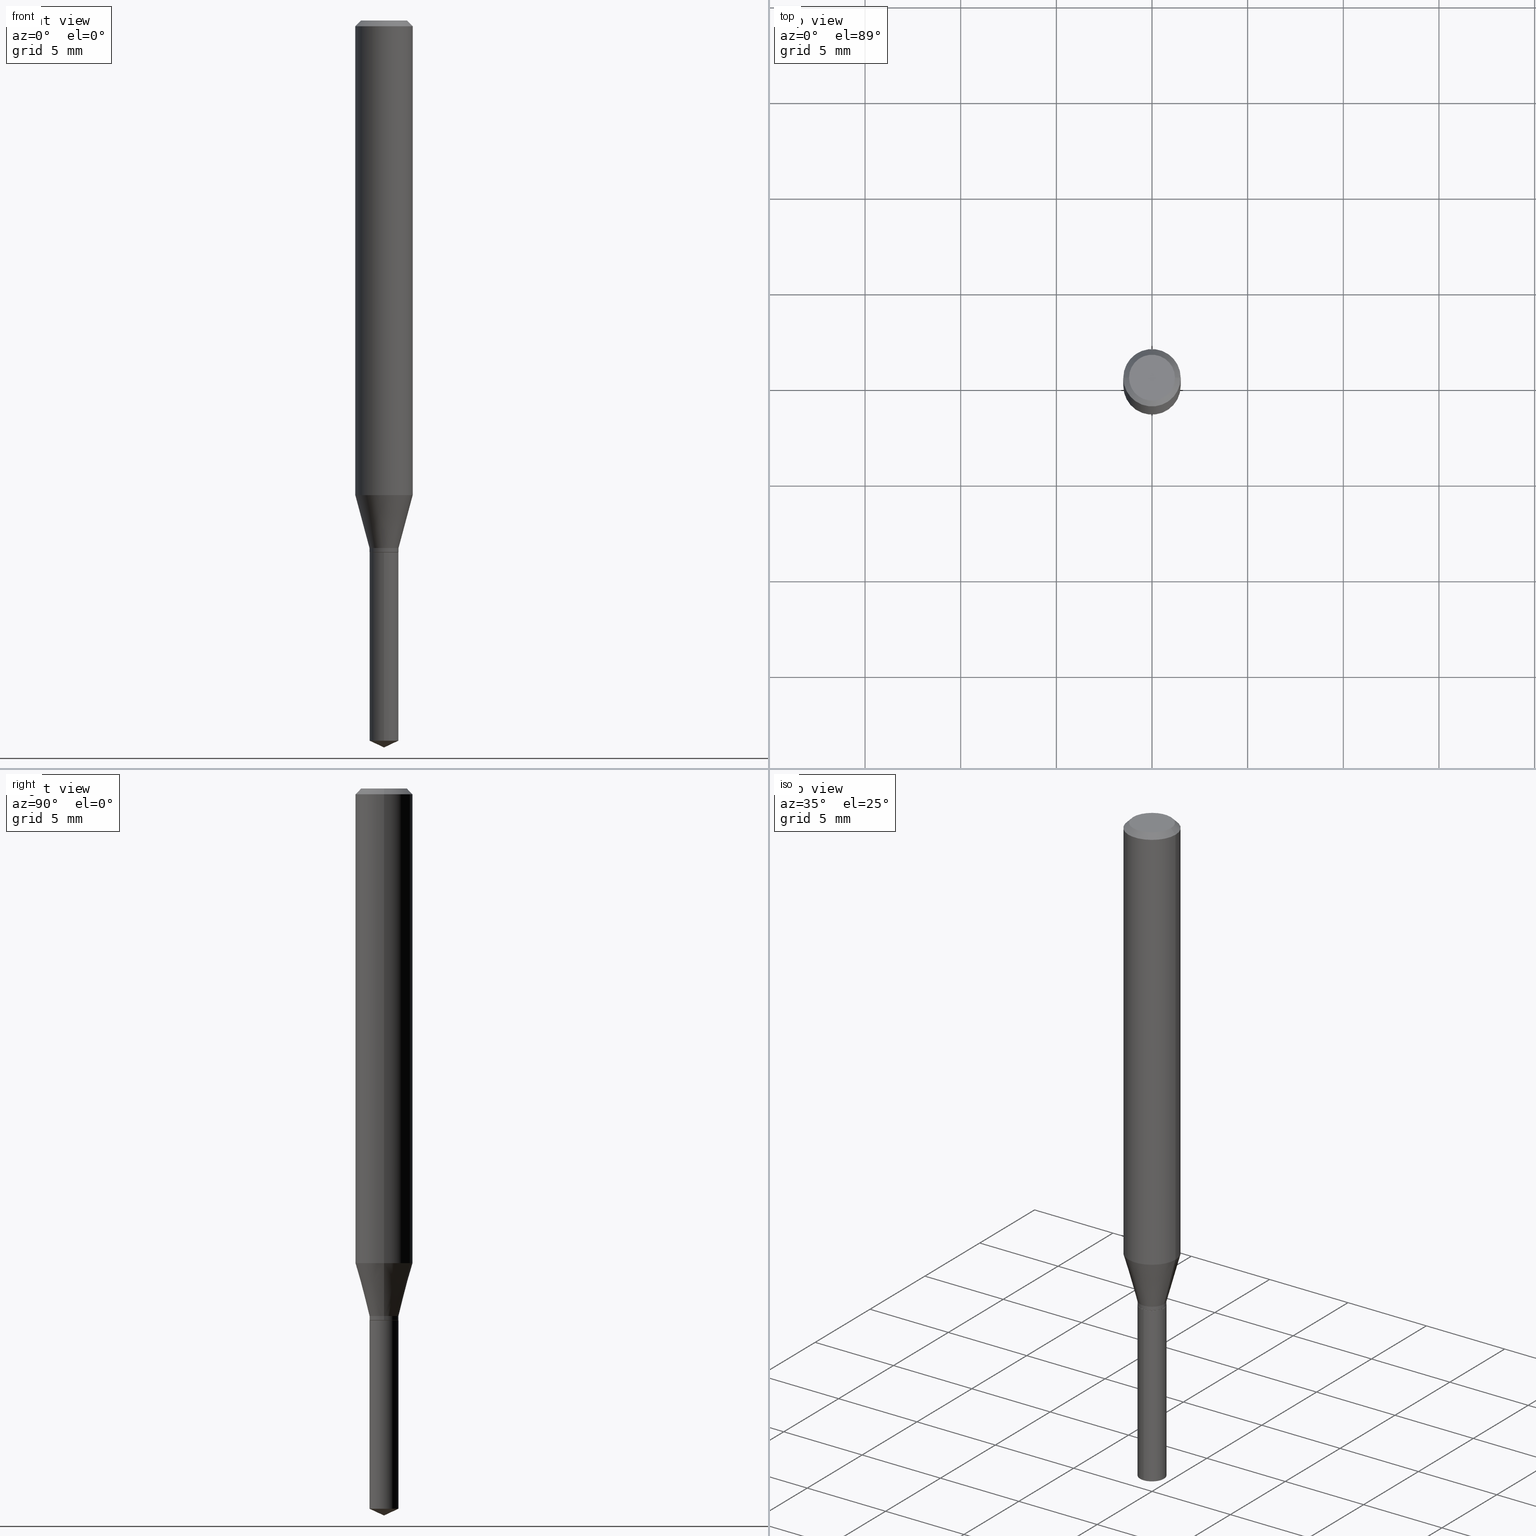
[diagram: canonical four-view strip — front | top / right | iso, engineering-drawing reading convention]
A machine part, canonical four-view strip (front | top / right | iso — engineering-drawing reading convention). The complete STEP part file that produces these views, byte-faithful:
ISO-10303-21;
HEADER;
FILE_DESCRIPTION (( 'STEP AP203' ),
    '1' );
FILE_NAME ('07543.STEP',
    '2024-04-23T22:43:20',
    ( '' ),
    ( '' ),
    'SwSTEP 2.0',
    'SolidWorks 2023',
    '' );
FILE_SCHEMA (( 'CONFIG_CONTROL_DESIGN' ));
ENDSEC;

DATA;
#1 = CC_DESIGN_PERSON_AND_ORGANIZATION_ASSIGNMENT ( #312, #278, ( #298 ) ) ;
#2 = DIRECTION ( 'NONE',  ( 2.445468806185136597E-29, -3.491481338843145583E-15, -1.000000000000000000 ) ) ;
#3 = CARTESIAN_POINT ( 'NONE',  ( 2.124522779923061410E-16, 0.02989999999999482308, -1.482157401021165555 ) ) ;
#4 = DIRECTION ( 'NONE',  ( -6.982962677686266711E-15, -1.000000000000000000, 4.568307681712814929E-15 ) ) ;
#5 = EDGE_CURVE ( 'NONE', #290, #109, #152, .T. ) ;
#6 = DIRECTION ( 'NONE',  ( 1.000000000000000000, -6.982962677686261977E-15, 0.000000000000000000 ) ) ;
#7 = ORIENTED_EDGE ( 'NONE', *, *, #103, .F. ) ;
#8 = AXIS2_PLACEMENT_3D ( 'NONE', #33, #195, #338 ) ;
#9 = DIRECTION ( 'NONE',  ( -2.445468806185136597E-29, 3.491481338843145583E-15, 1.000000000000000000 ) ) ;
#10 = CONICAL_SURFACE ( 'NONE', #125, 0.02939999999999999905, 0.7853981633972818566 ) ;
#11 = APPROVAL ( #244, 'UNSPECIFIED' ) ;
#12 = CARTESIAN_POINT ( 'NONE',  ( -0.04724000000000000421, 3.504923541997677355E-16, -3.380025165670481712E-19 ) ) ;
#13 = ORIENTED_EDGE ( 'NONE', *, *, #365, .T. ) ;
#14 = DIRECTION ( 'NONE',  ( 1.000000000000000000, -6.982962677686260400E-15, 0.000000000000000000 ) ) ;
#15 = EDGE_CURVE ( 'NONE', #370, #142, #88, .T. ) ;
#16 = CIRCLE ( 'NONE', #231, 0.05904999999999999832 ) ;
#17 = AXIS2_PLACEMENT_3D ( 'NONE', #485, #220, #440 ) ;
#18 = ORIENTED_EDGE ( 'NONE', *, *, #292, .T. ) ;
#19 = FACE_OUTER_BOUND ( 'NONE', #222, .T. ) ;
#20 = ORIENTED_EDGE ( 'NONE', *, *, #435, .T. ) ;
#21 = EDGE_CURVE ( 'NONE', #461, #173, #294, .T. ) ;
#22 = EDGE_LOOP ( 'NONE', ( #356, #309, #237, #404 ) ) ;
#23 = FACE_OUTER_BOUND ( 'NONE', #434, .T. ) ;
#24 = CC_DESIGN_APPROVAL ( #11, ( #90 ) ) ;
#25 = CARTESIAN_POINT ( 'NONE',  ( -9.261968845786000133E-28, 1.322362114038720264E-13, 37.87397874015748300 ) ) ;
#26 = CALENDAR_DATE ( 2024, 23, 4 ) ;
#27 = EDGE_CURVE ( 'NONE', #142, #432, #264, .T. ) ;
#28 = ORIENTED_EDGE ( 'NONE', *, *, #358, .T. ) ;
#29 = AXIS2_PLACEMENT_3D ( 'NONE', #230, #186, #416 ) ;
#30 = AXIS2_PLACEMENT_3D ( 'NONE', #266, #452, #316 ) ;
#31 = CC_DESIGN_APPROVAL ( #53, ( #136 ) ) ;
#32 = ORIENTED_EDGE ( 'NONE', *, *, #78, .F. ) ;
#33 = CARTESIAN_POINT ( 'NONE',  ( 2.675342873966538993E-29, -3.819680584694400481E-15, -1.093999999999999861 ) ) ;
#34 = CYLINDRICAL_SURFACE ( 'NONE', #17, 0.02989999999999999949 ) ;
#35 = ORIENTED_EDGE ( 'NONE', *, *, #292, .F. ) ;
#36 = CIRCLE ( 'NONE', #181, 0.04724000000000000421 ) ;
#37 = APPROVAL_PERSON_ORGANIZATION ( #456, #232, #210 ) ;
#38 = ORIENTED_EDGE ( 'NONE', *, *, #218, .T. ) ;
#39 = DIRECTION ( 'NONE',  ( -2.445468806185136597E-29, 3.491481338843145583E-15, 1.000000000000000000 ) ) ;
#40 = LINE ( 'NONE', #197, #305 ) ;
#41 = DIRECTION ( 'NONE',  ( 1.000000000000000000, -6.982962677686266711E-15, 4.876185090822587894E-29 ) ) ;
#42 = CC_DESIGN_PERSON_AND_ORGANIZATION_ASSIGNMENT ( #169, #314, ( #90 ) ) ;
#43 = DIRECTION ( 'NONE',  ( -0.7071067811864297781, 7.493145998869928175E-15, 0.7071067811866651454 ) ) ;
#44 = ORIENTED_EDGE ( 'NONE', *, *, #175, .T. ) ;
#45 = VECTOR ( 'NONE', #190, 39.37007874015748854 ) ;
#46 = CARTESIAN_POINT ( 'NONE',  ( 0.02989999999999999949, -2.087905840628193703E-16, 1.457976855962984862E-30 ) ) ;
#47 = VECTOR ( 'NONE', #121, 39.37007874015748143 ) ;
#48 = ORIENTED_EDGE ( 'NONE', *, *, #261, .T. ) ;
#49 = CARTESIAN_POINT ( 'NONE',  ( 3.658668015054778287E-29, -5.223602213574301462E-15, -1.496099999999999985 ) ) ;
#50 = ADVANCED_FACE ( 'NONE', ( #189 ), #68, .F. ) ;
#51 = DATE_AND_TIME ( #398, #357 ) ;
#52 = DIRECTION ( 'NONE',  ( -0.7071067811865453523, 2.468850131082234184E-15, -0.7071067811865496822 ) ) ;
#53 = APPROVAL ( #112, 'UNSPECIFIED' ) ;
#54 = ORIENTED_EDGE ( 'NONE', *, *, #194, .T. ) ;
#55 = DIRECTION ( 'NONE',  ( -6.982962677686266711E-15, -1.000000000000000000, 0.000000000000000000 ) ) ;
#56 = CIRCLE ( 'NONE', #30, 0.05905000000000011628 ) ;
#57 = PERSON ( 'UNSPECIFIED', 'UNSPECIFIED', 'UNSPECIFIED', ('UNSPECIFIED'), ('UNSPECIFIED'), ('UNSPECIFIED') ) ;
#58 = ORIENTED_EDGE ( 'NONE', *, *, #133, .F. ) ;
#59 = FACE_OUTER_BOUND ( 'NONE', #423, .T. ) ;
#60 = VERTEX_POINT ( 'NONE', #223 ) ;
#61 = DIRECTION ( 'NONE',  ( -2.445470214571802116E-29, 3.491479321953280158E-15, 1.000000000000000000 ) ) ;
#62 = AXIS2_PLACEMENT_3D ( 'NONE', #480, #329, #438 ) ;
#63 = CIRCLE ( 'NONE', #219, 0.05904999999999999832 ) ;
#64 = DIRECTION ( 'NONE',  ( -6.982962677686266711E-15, -1.000000000000000000, 4.568307681712814929E-15 ) ) ;
#65 = DIRECTION ( 'NONE',  ( -2.445468806185136597E-29, 3.491481338843145583E-15, 1.000000000000000000 ) ) ;
#66 = ADVANCED_FACE ( 'NONE', ( #113 ), #117, .T. ) ;
#67 = VERTEX_POINT ( 'NONE', #259 ) ;
#68 = PLANE ( 'NONE',  #29 ) ;
#69 = AXIS2_PLACEMENT_3D ( 'NONE', #84, #209, #14 ) ;
#70 = CONICAL_SURFACE ( 'NONE', #394, 84.42940631927474726, 1.134464013796317783 ) ;
#71 = DIRECTION ( 'NONE',  ( -2.445470214571802116E-29, 3.491479321953280158E-15, 1.000000000000000000 ) ) ;
#72 = EDGE_CURVE ( 'NONE', #67, #204, #106, .T. ) ;
#73 = ORIENTED_EDGE ( 'NONE', *, *, #185, .F. ) ;
#74 = PERSON_AND_ORGANIZATION ( #57, #187 ) ;
#75 = CARTESIAN_POINT ( 'NONE',  ( 2.888098660104664204E-31, -4.123439461173780263E-17, -0.01181000000000007218 ) ) ;
#76 = LINE ( 'NONE', #269, #470 ) ;
#77 = ORIENTED_EDGE ( 'NONE', *, *, #365, .F. ) ;
#78 = EDGE_CURVE ( 'NONE', #432, #472, #191, .T. ) ;
#79 = VECTOR ( 'NONE', #424, 39.37007874015748143 ) ;
#80 = AXIS2_PLACEMENT_3D ( 'NONE', #449, #196, #6 ) ;
#81 = DIRECTION ( 'NONE',  ( 1.000000000000000000, -6.982962677686266711E-15, 0.000000000000000000 ) ) ;
#82 = CARTESIAN_POINT ( 'NONE',  ( -0.05905000000000011628, -2.990591763228361215E-15, -0.9767107189593668970 ) ) ;
#83 = EDGE_LOOP ( 'NONE', ( #167, #489, #35 ) ) ;
#84 = CARTESIAN_POINT ( 'NONE',  ( 2.675342873966538993E-29, -3.819680584694400481E-15, -1.093999999999999861 ) ) ;
#85 = CYLINDRICAL_SURFACE ( 'NONE', #373, 0.05905000000000006077 ) ;
#86 = DIRECTION ( 'NONE',  ( -1.000000000000000000, 6.982962677686266711E-15, 0.000000000000000000 ) ) ;
#87 = CARTESIAN_POINT ( 'NONE',  ( 2.888098660104664204E-31, -4.123439461173780263E-17, -0.01181000000000007218 ) ) ;
#88 = CIRCLE ( 'NONE', #436, 0.02939999999999999905 ) ;
#89 = CARTESIAN_POINT ( 'NONE',  ( -0.05904999999999999832, -1.306125336186879331E-15, -0.01181000000000007218 ) ) ;
#90 = PRODUCT_DEFINITION_FORMATION_WITH_SPECIFIED_SOURCE ( 'ANY', '', #443, .NOT_KNOWN. ) ;
#91 = ADVANCED_FACE ( 'NONE', ( #410 ), #202, .T. ) ;
#92 = ORIENTED_EDGE ( 'NONE', *, *, #141, .F. ) ;
#93 = CARTESIAN_POINT ( 'NONE',  ( -2.087905840627830827E-16, -0.02990000000000516897, -1.482157401021165555 ) ) ;
#94 = ORIENTED_EDGE ( 'NONE', *, *, #474, .T. ) ;
#95 = ADVANCED_FACE ( 'NONE', ( #262 ), #250, .T. ) ;
#96 = ORIENTED_EDGE ( 'NONE', *, *, #27, .T. ) ;
#97 = CLOSED_SHELL ( 'NONE', ( #247, #392, #471, #322, #326 ) ) ;
#98 = CONICAL_SURFACE ( 'NONE', #80, 0.02989999999999999949, 0.2617993877991497964 ) ;
#99 = APPROVAL_PERSON_ORGANIZATION ( #383, #11, #203 ) ;
#100 = EDGE_LOOP ( 'NONE', ( #28, #156 ) ) ;
#101 = DIRECTION ( 'NONE',  ( 1.000000000000000000, -6.982962677686266711E-15, 4.876176775795935793E-29 ) ) ;
#102 = DIRECTION ( 'NONE',  ( 1.000000000000000000, -6.982962677686260400E-15, 0.000000000000000000 ) ) ;
#103 = EDGE_CURVE ( 'NONE', #290, #461, #458, .T. ) ;
#104 = AXIS2_PLACEMENT_3D ( 'NONE', #75, #2, #384 ) ;
#105 = CIRCLE ( 'NONE', #260, 0.02989999999999999949 ) ;
#106 = LINE ( 'NONE', #226, #327 ) ;
#107 = LINE ( 'NONE', #459, #289 ) ;
#108 = DIRECTION ( 'NONE',  ( -2.445470214571802116E-29, 3.491479321953280158E-15, 1.000000000000000000 ) ) ;
#109 = VERTEX_POINT ( 'NONE', #93 ) ;
#110 = CARTESIAN_POINT ( 'NONE',  ( -0.02939999999999999905, -3.609877533876242248E-15, -1.094500000000000028 ) ) ;
#111 = EDGE_CURVE ( 'NONE', #293, #446, #123, .T. ) ;
#112 = APPROVAL_STATUS ( 'not_yet_approved' ) ;
#113 = FACE_OUTER_BOUND ( 'NONE', #216, .T. ) ;
#114 = AXIS2_PLACEMENT_3D ( 'NONE', #369, #372, #221 ) ;
#115 = APPROVAL_DATE_TIME ( #376, #53 ) ;
#116 = CC_DESIGN_DATE_AND_TIME_ASSIGNMENT ( #166, #390, ( #136 ) ) ;
#117 = CYLINDRICAL_SURFACE ( 'NONE', #62, 0.02989999999999999949 ) ;
#118 = CARTESIAN_POINT ( 'NONE',  ( 0.000000000000000000, 0.000000000000000000, 0.000000000000000000 ) ) ;
#119 = ORIENTED_EDGE ( 'NONE', *, *, #254, .T. ) ;
#120 = APPROVAL_DATE_TIME ( #51, #232 ) ;
#121 = DIRECTION ( 'NONE',  ( -2.445468806185136877E-29, 3.491481338843145188E-15, 1.000000000000000000 ) ) ;
#122 = FACE_OUTER_BOUND ( 'NONE', #160, .T. ) ;
#123 = CIRCLE ( 'NONE', #288, 0.05905000000000011628 ) ;
#124 = ORIENTED_EDGE ( 'NONE', *, *, #27, .F. ) ;
#125 = AXIS2_PLACEMENT_3D ( 'NONE', #462, #65, #102 ) ;
#126 = CARTESIAN_POINT ( 'NONE',  ( 2.388515595881789392E-29, -3.410167248694701497E-15, -0.9767107189593668970 ) ) ;
#127 = DIRECTION ( 'NONE',  ( 1.000000000000000000, -6.982962677686266711E-15, 4.876176775795935793E-29 ) ) ;
#128 = APPROVAL_STATUS ( 'not_yet_approved' ) ;
#129 = DIRECTION ( 'NONE',  ( -2.445470214571802116E-29, 3.491479321953280158E-15, 1.000000000000000000 ) ) ;
#130 = CARTESIAN_POINT ( 'NONE',  ( -0.02989999999999999949, -3.592389511012047083E-15, -1.085499999999999909 ) ) ;
#131 = COORDINATED_UNIVERSAL_TIME_OFFSET ( 5, 0, .BEHIND. ) ;
#132 = ORIENTED_EDGE ( 'NONE', *, *, #182, .F. ) ;
#133 = EDGE_CURVE ( 'NONE', #173, #60, #487, .T. ) ;
#134 = CARTESIAN_POINT ( 'NONE',  ( 0.02939999999999999905, -4.026725428087799482E-15, -1.094500000000000028 ) ) ;
#135 = AXIS2_PLACEMENT_3D ( 'NONE', #378, #477, #332 ) ;
#136 = PRODUCT_DEFINITION ( 'UNKNOWN', '', #90, #407 ) ;
#137 = DIRECTION ( 'NONE',  ( -2.445468806185136877E-29, 3.491481338843145188E-15, 1.000000000000000000 ) ) ;
#138 = AXIS2_PLACEMENT_3D ( 'NONE', #184, #108, #64 ) ;
#139 = UNCERTAINTY_MEASURE_WITH_UNIT (LENGTH_MEASURE( 1.000000000000000082E-05 ), #239, 'distance_accuracy_value', 'NONE');
#140 = VERTEX_POINT ( 'NONE', #89 ) ;
#141 = EDGE_CURVE ( 'NONE', #441, #446, #238, .T. ) ;
#142 = VERTEX_POINT ( 'NONE', #134 ) ;
#143 = CARTESIAN_POINT ( 'NONE',  ( 3.658667988020872822E-29, -5.223602213574301462E-15, -1.496099999999999985 ) ) ;
#144 = CC_DESIGN_PERSON_AND_ORGANIZATION_ASSIGNMENT ( #150, #257, ( #443 ) ) ;
#145 = ORIENTED_EDGE ( 'NONE', *, *, #435, .F. ) ;
#146 = AXIS2_PLACEMENT_3D ( 'NONE', #286, #148, #101 ) ;
#147 = EDGE_CURVE ( 'NONE', #140, #204, #16, .T. ) ;
#148 = DIRECTION ( 'NONE',  ( -2.445468806185136597E-29, 3.491481338843145583E-15, 1.000000000000000000 ) ) ;
#149 = ADVANCED_BREP_SHAPE_REPRESENTATION ( '07543', ( #484, #481, #328 ), #402 ) ;
#150 = PERSON_AND_ORGANIZATION ( #57, #187 ) ;
#151 = EDGE_LOOP ( 'NONE', ( #7, #387, #256 ) ) ;
#152 = LINE ( 'NONE', #154, #45 ) ;
#153 = DIRECTION ( 'NONE',  ( 6.982962677686265922E-15, 1.000000000000000000, -3.491479321953280158E-15 ) ) ;
#154 = CARTESIAN_POINT ( 'NONE',  ( 3.658664905062460986E-29, -5.223606628546217219E-15, -1.496099999999999985 ) ) ;
#155 = VECTOR ( 'NONE', #421, 39.37007874015748854 ) ;
#156 = ORIENTED_EDGE ( 'NONE', *, *, #133, .T. ) ;
#157 = EDGE_CURVE ( 'NONE', #472, #441, #273, .T. ) ;
#158 = FACE_OUTER_BOUND ( 'NONE', #469, .T. ) ;
#159 = PRODUCT_DEFINITION_SHAPE ( 'NONE', 'NONE',  #136 ) ;
#160 = EDGE_LOOP ( 'NONE', ( #13, #457, #323, #377 ) ) ;
#161 = CARTESIAN_POINT ( 'NONE',  ( 0.02989999999999999949, -3.998793577377053058E-15, -1.085499999999999909 ) ) ;
#162 = CC_DESIGN_DATE_AND_TIME_ASSIGNMENT ( #318, #342, ( #298 ) ) ;
#163 =( LENGTH_UNIT ( ) NAMED_UNIT ( * ) SI_UNIT ( $, .METRE. ) );
#164 = VECTOR ( 'NONE', #52, 39.37007874015748143 ) ;
#165 = CONICAL_SURFACE ( 'NONE', #215, 84.42940631927474726, 1.134464013796317783 ) ;
#166 = DATE_AND_TIME ( #386, #306 ) ;
#167 = ORIENTED_EDGE ( 'NONE', *, *, #5, .F. ) ;
#168 = DIRECTION ( 'NONE',  ( 1.000000000000000000, -6.982962677686260400E-15, 0.000000000000000000 ) ) ;
#169 = PERSON_AND_ORGANIZATION ( #57, #187 ) ;
#170 = ORIENTED_EDGE ( 'NONE', *, *, #147, .T. ) ;
#171 = CARTESIAN_POINT ( 'NONE',  ( -0.02989999999999999949, -3.577550715321963908E-15, -1.085499999999999909 ) ) ;
#172 = DATE_AND_TIME ( #460, #225 ) ;
#173 = VERTEX_POINT ( 'NONE', #174 ) ;
#174 = CARTESIAN_POINT ( 'NONE',  ( 2.124522779923062642E-16, 0.02989999999999617963, -1.094500000000000028 ) ) ;
#175 = EDGE_CURVE ( 'NONE', #472, #432, #355, .T. ) ;
#176 = ORIENTED_EDGE ( 'NONE', *, *, #21, .F. ) ;
#177 = EDGE_LOOP ( 'NONE', ( #20, #414 ) ) ;
#178 = CARTESIAN_POINT ( 'NONE',  ( 2.676565608369631794E-29, -3.821426325363822773E-15, -1.094499999999999806 ) ) ;
#179 = ORIENTED_EDGE ( 'NONE', *, *, #358, .F. ) ;
#180 = CARTESIAN_POINT ( 'NONE',  ( -8.743037249231977363E-30, -8.906473313570516139E-15, -1.094500000000000028 ) ) ;
#181 = AXIS2_PLACEMENT_3D ( 'NONE', #241, #265, #396 ) ;
#182 = EDGE_CURVE ( 'NONE', #446, #293, #56, .T. ) ;
#183 = CARTESIAN_POINT ( 'NONE',  ( 2.654556389113965852E-29, -3.790002993314234131E-15, -1.085499999999999909 ) ) ;
#184 = CARTESIAN_POINT ( 'NONE',  ( 2.676565608369631794E-29, -3.821426325363822773E-15, -1.094499999999999806 ) ) ;
#185 = EDGE_CURVE ( 'NONE', #253, #140, #428, .T. ) ;
#186 = DIRECTION ( 'NONE',  ( 2.438088387897960049E-29, -3.491481338843145188E-15, -1.000000000000000000 ) ) ;
#187 = ORGANIZATION ( 'UNSPECIFIED', 'UNSPECIFIED', '' ) ;
#188 = DIRECTION ( 'NONE',  ( 1.000000000000000000, -6.982962677686260400E-15, 0.000000000000000000 ) ) ;
#189 = FACE_OUTER_BOUND ( 'NONE', #177, .T. ) ;
#190 = DIRECTION ( 'NONE',  ( -6.328713451373378845E-15, -0.9063077870366499367, 0.4226182617406992748 ) ) ;
#191 = CIRCLE ( 'NONE', #8, 0.02990000000000000643 ) ;
#192 = CONICAL_SURFACE ( 'NONE', #114, 0.02939999999999999905, 0.7853981633972818566 ) ;
#193 = CARTESIAN_POINT ( 'NONE',  ( -0.02990000000000000990, -3.592389511012047083E-15, -1.093999999999999861 ) ) ;
#194 = EDGE_CURVE ( 'NONE', #293, #204, #40, .T. ) ;
#195 = DIRECTION ( 'NONE',  ( -2.445468806185136597E-29, 3.491481338843145583E-15, 1.000000000000000000 ) ) ;
#196 = DIRECTION ( 'NONE',  ( -2.445468806185136597E-29, 3.491481338843145583E-15, 1.000000000000000000 ) ) ;
#197 = CARTESIAN_POINT ( 'NONE',  ( 0.05905000000000006077, -4.123439461173744764E-16, 2.879382386107503023E-30 ) ) ;
#198 = DIRECTION ( 'NONE',  ( 0.2588190451025211281, 1.565188264969623940E-15, 0.9659258262890682012 ) ) ;
#199 = EDGE_LOOP ( 'NONE', ( #18, #333, #179, #212 ) ) ;
#200 = CARTESIAN_POINT ( 'NONE',  ( 2.888098660104664204E-31, -4.123439461173780263E-17, -0.01181000000000007218 ) ) ;
#201 = ADVANCED_FACE ( 'NONE', ( #158 ), #371, .T. ) ;
#202 = CONICAL_SURFACE ( 'NONE', #135, 0.02989999999999999949, 0.2617993877991497964 ) ;
#203 = APPROVAL_ROLE ( '' ) ;
#204 = VERTEX_POINT ( 'NONE', #341 ) ;
#205 = LINE ( 'NONE', #388, #285 ) ;
#206 = CC_DESIGN_PERSON_AND_ORGANIZATION_ASSIGNMENT ( #74, #229, ( #136 ) ) ;
#207 = LENGTH_MEASURE_WITH_UNIT ( LENGTH_MEASURE( 0.02539999999999999897 ), #163 );
#208 = ORIENTED_EDGE ( 'NONE', *, *, #185, .T. ) ;
#209 = DIRECTION ( 'NONE',  ( -2.445468806185136597E-29, 3.491481338843145583E-15, 1.000000000000000000 ) ) ;
#210 = APPROVAL_ROLE ( '' ) ;
#211 = FACE_OUTER_BOUND ( 'NONE', #199, .T. ) ;
#212 = ORIENTED_EDGE ( 'NONE', *, *, #218, .F. ) ;
#213 = EDGE_CURVE ( 'NONE', #461, #109, #334, .T. ) ;
#214 = CARTESIAN_POINT ( 'NONE',  ( 0.05905000000000011628, -3.822511194812076417E-15, -0.9767107189593668970 ) ) ;
#215 = AXIS2_PLACEMENT_3D ( 'NONE', #347, #311, #385 ) ;
#216 = EDGE_LOOP ( 'NONE', ( #361, #297, #77, #360 ) ) ;
#217 = VERTEX_POINT ( 'NONE', #161 ) ;
#218 = EDGE_CURVE ( 'NONE', #109, #60, #243, .T. ) ;
#219 = AXIS2_PLACEMENT_3D ( 'NONE', #87, #301, #272 ) ;
#220 = DIRECTION ( 'NONE',  ( -2.445468806185136597E-29, 3.491481338843145583E-15, 1.000000000000000000 ) ) ;
#221 = DIRECTION ( 'NONE',  ( 1.000000000000000000, -6.982962677686260400E-15, 0.000000000000000000 ) ) ;
#222 = EDGE_LOOP ( 'NONE', ( #319, #321, #54, #413 ) ) ;
#223 = CARTESIAN_POINT ( 'NONE',  ( -2.087905840627926230E-16, -0.02990000000000381936, -1.094499999999999806 ) ) ;
#224 = AXIS2_PLACEMENT_3D ( 'NONE', #200, #279, #86 ) ;
#225 = LOCAL_TIME ( 18, 43, 20.00000000000000000, #348 ) ;
#226 = CARTESIAN_POINT ( 'NONE',  ( 0.05904999999999999832, -4.463468013801466955E-16, -0.01181000000000007218 ) ) ;
#227 = CARTESIAN_POINT ( 'NONE',  ( 0.02939999999999999905, -4.026725428087799482E-15, -1.094500000000000028 ) ) ;
#228 = DIRECTION ( 'NONE',  ( 1.000000000000000000, -6.982962677686261977E-15, 0.000000000000000000 ) ) ;
#229 = PERSON_AND_ORGANIZATION_ROLE ( 'creator' ) ;
#230 = CARTESIAN_POINT ( 'NONE',  ( 4.132873053354867254E-48, -5.900647395337818946E-34, -1.690012582823346072E-19 ) ) ;
#231 = AXIS2_PLACEMENT_3D ( 'NONE', #351, #271, #397 ) ;
#232 = APPROVAL ( #128, 'UNSPECIFIED' ) ;
#233 = CIRCLE ( 'NONE', #488, 0.02989999999999999949 ) ;
#234 = APPROVAL_DATE_TIME ( #172, #11 ) ;
#235 = CARTESIAN_POINT ( 'NONE',  ( -0.02989999999999999949, 2.124522779922699520E-16, -1.470761591986216939E-30 ) ) ;
#236 = FACE_OUTER_BOUND ( 'NONE', #151, .T. ) ;
#237 = ORIENTED_EDGE ( 'NONE', *, *, #474, .F. ) ;
#238 = LINE ( 'NONE', #171, #393 ) ;
#239 =( CONVERSION_BASED_UNIT ( 'INCH', #207 ) LENGTH_UNIT ( ) NAMED_UNIT ( #287 ) );
#240 = CARTESIAN_POINT ( 'NONE',  ( 3.624570236025209020E-29, -5.174924125031373128E-15, -1.482157401021165555 ) ) ;
#241 = CARTESIAN_POINT ( 'NONE',  ( 8.265746106709734507E-48, -1.180129479067563789E-33, -3.380025165646692144E-19 ) ) ;
#242 = AXIS2_PLACEMENT_3D ( 'NONE', #296, #482, #153 ) ;
#243 = LINE ( 'NONE', #349, #345 ) ;
#244 = APPROVAL_STATUS ( 'not_yet_approved' ) ;
#245 = EDGE_LOOP ( 'NONE', ( #92, #466, #280, #132 ) ) ;
#246 = DIRECTION ( 'NONE',  ( -6.982962677686266711E-15, -1.000000000000000000, 0.000000000000000000 ) ) ;
#247 = ADVANCED_FACE ( 'NONE', ( #211 ), #391, .T. ) ;
#248 = ORIENTED_EDGE ( 'NONE', *, *, #157, .F. ) ;
#249 = ORIENTED_EDGE ( 'NONE', *, *, #72, .T. ) ;
#250 = CONICAL_SURFACE ( 'NONE', #104, 0.05904999999999999832, 0.7853981633974452814 ) ;
#251 = DIRECTION ( 'NONE',  ( 1.000000000000000000, -6.982962677686265922E-15, 4.876176775795935793E-29 ) ) ;
#252 = LOCAL_TIME ( 18, 43, 20.00000000000000000, #368 ) ;
#253 = VERTEX_POINT ( 'NONE', #12 ) ;
#254 = EDGE_CURVE ( 'NONE', #432, #217, #302, .T. ) ;
#255 = CYLINDRICAL_SURFACE ( 'NONE', #346, 0.02989999999999999949 ) ;
#256 = ORIENTED_EDGE ( 'NONE', *, *, #213, .F. ) ;
#257 = PERSON_AND_ORGANIZATION_ROLE ( 'design_owner' ) ;
#258 = ORIENTED_EDGE ( 'NONE', *, *, #15, .T. ) ;
#259 = CARTESIAN_POINT ( 'NONE',  ( 0.04724000000000000421, -3.852183633974369345E-16, -3.380025165621689721E-19 ) ) ;
#260 = AXIS2_PLACEMENT_3D ( 'NONE', #362, #433, #55 ) ;
#261 = EDGE_CURVE ( 'NONE', #370, #472, #205, .T. ) ;
#262 = FACE_OUTER_BOUND ( 'NONE', #274, .T. ) ;
#263 = CARTESIAN_POINT ( 'NONE',  ( 0.000000000000000000, 0.000000000000000000, 0.000000000000000000 ) ) ;
#264 = LINE ( 'NONE', #227, #401 ) ;
#265 = DIRECTION ( 'NONE',  ( -2.445468806185136597E-29, 3.491481338843145583E-15, 1.000000000000000000 ) ) ;
#266 = CARTESIAN_POINT ( 'NONE',  ( 2.388515595881789392E-29, -3.410167248694701497E-15, -0.9767107189593668970 ) ) ;
#267 = EDGE_CURVE ( 'NONE', #142, #370, #325, .T. ) ;
#268 = CIRCLE ( 'NONE', #335, 0.02989999999999999949 ) ;
#269 = CARTESIAN_POINT ( 'NONE',  ( 0.02989999999999999949, -3.998793577377053058E-15, -1.085499999999999909 ) ) ;
#270 = COORDINATED_UNIVERSAL_TIME_OFFSET ( 5, 0, .BEHIND. ) ;
#271 = DIRECTION ( 'NONE',  ( -2.445468806185136597E-29, 3.491481338843145583E-15, 1.000000000000000000 ) ) ;
#272 = DIRECTION ( 'NONE',  ( 1.000000000000000000, -6.982962677686266711E-15, 0.000000000000000000 ) ) ;
#273 = LINE ( 'NONE', #235, #79 ) ;
#274 = EDGE_LOOP ( 'NONE', ( #281, #145, #208, #170 ) ) ;
#275 = DIRECTION ( 'NONE',  ( -0.2588190451025211281, 5.211531920934548675E-15, 0.9659258262890682012 ) ) ;
#276 = AXIS2_PLACEMENT_3D ( 'NONE', #240, #450, #246 ) ;
#277 = AXIS2_PLACEMENT_3D ( 'NONE', #339, #307, #41 ) ;
#278 = PERSON_AND_ORGANIZATION_ROLE ( 'classification_officer' ) ;
#279 = DIRECTION ( 'NONE',  ( 2.445468806185136597E-29, -3.491481338843145583E-15, -1.000000000000000000 ) ) ;
#280 = ORIENTED_EDGE ( 'NONE', *, *, #447, .T. ) ;
#281 = ORIENTED_EDGE ( 'NONE', *, *, #72, .F. ) ;
#282 = DIRECTION ( 'NONE',  ( -2.438088387897960049E-29, 3.491481338843145188E-15, 1.000000000000000000 ) ) ;
#283 = ADVANCED_FACE ( 'NONE', ( #310 ), #10, .T. ) ;
#284 = ORIENTED_EDGE ( 'NONE', *, *, #439, .F. ) ;
#285 = VECTOR ( 'NONE', #43, 39.37007874015748854 ) ;
#286 = CARTESIAN_POINT ( 'NONE',  ( 0.000000000000000000, 0.000000000000000000, 0.000000000000000000 ) ) ;
#287 = DIMENSIONAL_EXPONENTS ( 1.000000000000000000, 0.000000000000000000, 0.000000000000000000, 0.000000000000000000, 0.000000000000000000, 0.000000000000000000, 0.000000000000000000 ) ;
#288 = AXIS2_PLACEMENT_3D ( 'NONE', #126, #430, #81 ) ;
#289 = VECTOR ( 'NONE', #418, 39.37007874015748143 ) ;
#290 = VERTEX_POINT ( 'NONE', #143 ) ;
#291 = APPLICATION_CONTEXT ( 'configuration controlled 3d designs of mechanical parts and assemblies' ) ;
#292 = EDGE_CURVE ( 'NONE', #109, #461, #105, .T. ) ;
#293 = VERTEX_POINT ( 'NONE', #214 ) ;
#294 = LINE ( 'NONE', #300, #405 ) ;
#295 = ADVANCED_FACE ( 'NONE', ( #23 ), #359, .F. ) ;
#296 = CARTESIAN_POINT ( 'NONE',  ( 2.676565608369631794E-29, -3.821426325363822773E-15, -1.094499999999999806 ) ) ;
#297 = ORIENTED_EDGE ( 'NONE', *, *, #157, .T. ) ;
#298 = SECURITY_CLASSIFICATION ( '', '', #463 ) ;
#299 = MECHANICAL_CONTEXT ( 'NONE', #291, 'mechanical' ) ;
#300 = CARTESIAN_POINT ( 'NONE',  ( 2.124522779922966746E-16, 0.02989999999999617963, -1.094500000000000028 ) ) ;
#301 = DIRECTION ( 'NONE',  ( -2.445468806185136597E-29, 3.491481338843145583E-15, 1.000000000000000000 ) ) ;
#302 = LINE ( 'NONE', #46, #47 ) ;
#303 = ADVANCED_FACE ( 'NONE', ( #19 ), #403, .T. ) ;
#304 = DIRECTION ( 'NONE',  ( -2.445470214571802116E-29, 3.491479321953280158E-15, 1.000000000000000000 ) ) ;
#305 = VECTOR ( 'NONE', #137, 39.37007874015748143 ) ;
#306 = LOCAL_TIME ( 18, 43, 20.00000000000000000, #270 ) ;
#307 = DIRECTION ( 'NONE',  ( -2.445468806185136597E-29, 3.491481338843145583E-15, 1.000000000000000000 ) ) ;
#308 = PERSON_AND_ORGANIZATION_ROLE ( 'creator' ) ;
#309 = ORIENTED_EDGE ( 'NONE', *, *, #426, .T. ) ;
#310 = FACE_OUTER_BOUND ( 'NONE', #343, .T. ) ;
#311 = DIRECTION ( 'NONE',  ( -2.445470214571802116E-29, 3.491479321953280158E-15, 1.000000000000000000 ) ) ;
#312 = PERSON_AND_ORGANIZATION ( #57, #187 ) ;
#313 = CARTESIAN_POINT ( 'NONE',  ( 2.676565608369631794E-29, -3.821426325363822773E-15, -1.094499999999999806 ) ) ;
#314 = PERSON_AND_ORGANIZATION_ROLE ( 'design_supplier' ) ;
#315 = ORIENTED_EDGE ( 'NONE', *, *, #15, .F. ) ;
#316 = DIRECTION ( 'NONE',  ( 1.000000000000000000, -6.982962677686266711E-15, 0.000000000000000000 ) ) ;
#317 = CLOSED_SHELL ( 'NONE', ( #350, #201, #467, #454, #66, #417, #91, #303, #95, #50, #295, #283 ) ) ;
#318 = DATE_AND_TIME ( #340, #363 ) ;
#319 = ORIENTED_EDGE ( 'NONE', *, *, #426, .F. ) ;
#320 = APPLICATION_CONTEXT ( 'configuration controlled 3d designs of mechanical parts and assemblies' ) ;
#321 = ORIENTED_EDGE ( 'NONE', *, *, #182, .T. ) ;
#322 = ADVANCED_FACE ( 'NONE', ( #59 ), #255, .T. ) ;
#323 = ORIENTED_EDGE ( 'NONE', *, *, #111, .F. ) ;
#324 = ORIENTED_EDGE ( 'NONE', *, *, #267, .T. ) ;
#325 = CIRCLE ( 'NONE', #381, 0.02939999999999999905 ) ;
#326 = ADVANCED_FACE ( 'NONE', ( #409 ), #331, .F. ) ;
#327 = VECTOR ( 'NONE', #380, 39.37007874015748143 ) ;
#328 = AXIS2_PLACEMENT_3D ( 'NONE', #118, #415, #451 ) ;
#329 = DIRECTION ( 'NONE',  ( -2.445468806185136597E-29, 3.491481338843145583E-15, 1.000000000000000000 ) ) ;
#330 = DIRECTION ( 'NONE',  ( 0.7071067811864297781, -2.468850131081024071E-15, 0.7071067811866651454 ) ) ;
#331 = PLANE ( 'NONE',  #242 ) ;
#332 = DIRECTION ( 'NONE',  ( 1.000000000000000000, -6.982962677686261977E-15, 0.000000000000000000 ) ) ;
#333 = ORIENTED_EDGE ( 'NONE', *, *, #21, .T. ) ;
#334 = CIRCLE ( 'NONE', #276, 0.02989999999999999949 ) ;
#335 = AXIS2_PLACEMENT_3D ( 'NONE', #422, #39, #228 ) ;
#336 = CC_DESIGN_APPROVAL ( #232, ( #298 ) ) ;
#337 =( NAMED_UNIT ( * ) PLANE_ANGLE_UNIT ( ) SI_UNIT ( $, .RADIAN. ) );
#338 = DIRECTION ( 'NONE',  ( 1.000000000000000000, -6.982962677686260400E-15, 0.000000000000000000 ) ) ;
#339 = CARTESIAN_POINT ( 'NONE',  ( 8.265746106709734507E-48, -1.180129479067563789E-33, -3.380025165646692144E-19 ) ) ;
#340 = CALENDAR_DATE ( 2024, 23, 4 ) ;
#341 = CARTESIAN_POINT ( 'NONE',  ( 0.05904999999999999832, -4.535783407291118600E-16, -0.01181000000000007218 ) ) ;
#342 = DATE_TIME_ROLE ( 'classification_date' ) ;
#343 = EDGE_LOOP ( 'NONE', ( #420, #258, #96, #444 ) ) ;
#344 = CARTESIAN_POINT ( 'NONE',  ( 2.676565608369632355E-29, -3.821426325363822773E-15, -1.094500000000000028 ) ) ;
#345 = VECTOR ( 'NONE', #399, 39.37007874015748143 ) ;
#346 = AXIS2_PLACEMENT_3D ( 'NONE', #178, #61, #364 ) ;
#347 = CARTESIAN_POINT ( 'NONE',  ( -9.261968845786000133E-28, 1.322362114038720264E-13, 37.87397874015748300 ) ) ;
#348 = COORDINATED_UNIVERSAL_TIME_OFFSET ( 5, 0, .BEHIND. ) ;
#349 = CARTESIAN_POINT ( 'NONE',  ( -2.087905840627926230E-16, -0.02990000000000381936, -1.094499999999999806 ) ) ;
#350 = ADVANCED_FACE ( 'NONE', ( #367 ), #192, .T. ) ;
#351 = CARTESIAN_POINT ( 'NONE',  ( 2.888098660104664204E-31, -4.123439461173780263E-17, -0.01181000000000007218 ) ) ;
#352 = PRODUCT_RELATED_PRODUCT_CATEGORY ( 'detail', '', ( #443 ) ) ;
#353 = SHAPE_DEFINITION_REPRESENTATION ( #159, #149 ) ;
#354 = DIRECTION ( 'NONE',  ( -6.982962677686266711E-15, -1.000000000000000000, 4.568307681712814929E-15 ) ) ;
#355 = CIRCLE ( 'NONE', #69, 0.02990000000000000643 ) ;
#356 = ORIENTED_EDGE ( 'NONE', *, *, #111, .T. ) ;
#357 = LOCAL_TIME ( 18, 43, 20.00000000000000000, #425 ) ;
#358 = EDGE_CURVE ( 'NONE', #60, #173, #437, .T. ) ;
#359 = PLANE ( 'NONE',  #406 ) ;
#360 = ORIENTED_EDGE ( 'NONE', *, *, #254, .F. ) ;
#361 = ORIENTED_EDGE ( 'NONE', *, *, #78, .T. ) ;
#362 = CARTESIAN_POINT ( 'NONE',  ( 3.624570236025209020E-29, -5.174924125031373128E-15, -1.482157401021165555 ) ) ;
#363 = LOCAL_TIME ( 18, 43, 20.00000000000000000, #131 ) ;
#364 = DIRECTION ( 'NONE',  ( -6.982962677686266711E-15, -1.000000000000000000, 4.568307681712814929E-15 ) ) ;
#365 = EDGE_CURVE ( 'NONE', #217, #441, #233, .T. ) ;
#366 = DIRECTION ( 'NONE',  ( 1.000000000000000000, -6.982962677686261977E-15, 0.000000000000000000 ) ) ;
#367 = FACE_OUTER_BOUND ( 'NONE', #431, .T. ) ;
#368 = COORDINATED_UNIVERSAL_TIME_OFFSET ( 5, 0, .BEHIND. ) ;
#369 = CARTESIAN_POINT ( 'NONE',  ( 2.676565608369632355E-29, -3.821426325363822773E-15, -1.094500000000000028 ) ) ;
#370 = VERTEX_POINT ( 'NONE', #110 ) ;
#371 = CONICAL_SURFACE ( 'NONE', #224, 0.05904999999999999832, 0.7853981633974452814 ) ;
#372 = DIRECTION ( 'NONE',  ( -2.445468806185136597E-29, 3.491481338843145583E-15, 1.000000000000000000 ) ) ;
#373 = AXIS2_PLACEMENT_3D ( 'NONE', #263, #379, #127 ) ;
#374 = DIRECTION ( 'NONE',  ( -2.445470214571802396E-29, 3.491479321953280158E-15, 1.000000000000000000 ) ) ;
#375 = FACE_OUTER_BOUND ( 'NONE', #468, .T. ) ;
#376 = DATE_AND_TIME ( #26, #252 ) ;
#377 = ORIENTED_EDGE ( 'NONE', *, *, #447, .F. ) ;
#378 = CARTESIAN_POINT ( 'NONE',  ( 2.654556389113965852E-29, -3.790002993314234131E-15, -1.085499999999999909 ) ) ;
#379 = DIRECTION ( 'NONE',  ( -2.445468806185136597E-29, 3.491481338843145583E-15, 1.000000000000000000 ) ) ;
#380 = DIRECTION ( 'NONE',  ( 0.7071067811865453523, -7.319954787623248157E-15, -0.7071067811865496822 ) ) ;
#381 = AXIS2_PLACEMENT_3D ( 'NONE', #344, #9, #168 ) ;
#382 = APPLICATION_PROTOCOL_DEFINITION ( 'international standard', 'config_control_design', 1994, #291 ) ;
#383 = PERSON_AND_ORGANIZATION ( #57, #187 ) ;
#384 = DIRECTION ( 'NONE',  ( -1.000000000000000000, 6.982962677686266711E-15, 0.000000000000000000 ) ) ;
#385 = DIRECTION ( 'NONE',  ( -6.982962677686267499E-15, -1.000000000000000000, 3.520397390770436909E-15 ) ) ;
#386 = CALENDAR_DATE ( 2024, 23, 4 ) ;
#387 = ORIENTED_EDGE ( 'NONE', *, *, #5, .T. ) ;
#388 = CARTESIAN_POINT ( 'NONE',  ( -0.02939999999999999905, -3.612526761050354238E-15, -1.094500000000000028 ) ) ;
#389 = CARTESIAN_POINT ( 'NONE',  ( 0.02990000000000000643, -4.028471168757220196E-15, -1.093999999999999861 ) ) ;
#390 = DATE_TIME_ROLE ( 'creation_date' ) ;
#391 = CYLINDRICAL_SURFACE ( 'NONE', #476, 0.02989999999999999949 ) ;
#392 = ADVANCED_FACE ( 'NONE', ( #445 ), #70, .T. ) ;
#393 = VECTOR ( 'NONE', #275, 39.37007874015748143 ) ;
#394 = AXIS2_PLACEMENT_3D ( 'NONE', #25, #71, #408 ) ;
#395 = CC_DESIGN_SECURITY_CLASSIFICATION ( #298, ( #90 ) ) ;
#396 = DIRECTION ( 'NONE',  ( 1.000000000000000000, -6.982962677686266711E-15, 4.876185090822587894E-29 ) ) ;
#397 = DIRECTION ( 'NONE',  ( 1.000000000000000000, -6.982962677686266711E-15, 0.000000000000000000 ) ) ;
#398 = CALENDAR_DATE ( 2024, 23, 4 ) ;
#399 = DIRECTION ( 'NONE',  ( -2.445470214571802396E-29, 3.491479321953280158E-15, 1.000000000000000000 ) ) ;
#400 = ORIENTED_EDGE ( 'NONE', *, *, #267, .F. ) ;
#401 = VECTOR ( 'NONE', #330, 39.37007874015748854 ) ;
#402 =( GEOMETRIC_REPRESENTATION_CONTEXT ( 3 ) GLOBAL_UNCERTAINTY_ASSIGNED_CONTEXT ( ( #139 ) ) GLOBAL_UNIT_ASSIGNED_CONTEXT ( ( #239, #337, #490 ) ) REPRESENTATION_CONTEXT ( 'NONE', 'WORKASPACE' ) );
#403 = CYLINDRICAL_SURFACE ( 'NONE', #146, 0.05905000000000006077 ) ;
#404 = ORIENTED_EDGE ( 'NONE', *, *, #194, .F. ) ;
#405 = VECTOR ( 'NONE', #374, 39.37007874015748143 ) ;
#406 = AXIS2_PLACEMENT_3D ( 'NONE', #180, #282, #251 ) ;
#407 = DESIGN_CONTEXT ( 'detailed design', #320, 'design' ) ;
#408 = DIRECTION ( 'NONE',  ( -6.982962677686267499E-15, -1.000000000000000000, 3.520397390770436909E-15 ) ) ;
#409 = FACE_OUTER_BOUND ( 'NONE', #100, .T. ) ;
#410 = FACE_OUTER_BOUND ( 'NONE', #245, .T. ) ;
#411 = DIRECTION ( 'NONE',  ( -2.445468806185136597E-29, 3.491481338843145583E-15, 1.000000000000000000 ) ) ;
#412 = APPROVAL_ROLE ( '' ) ;
#413 = ORIENTED_EDGE ( 'NONE', *, *, #147, .F. ) ;
#414 = ORIENTED_EDGE ( 'NONE', *, *, #486, .T. ) ;
#415 = DIRECTION ( 'NONE',  ( 0.000000000000000000, 0.000000000000000000, 1.000000000000000000 ) ) ;
#416 = DIRECTION ( 'NONE',  ( -1.000000000000000000, 6.982962677686265922E-15, -4.876176775795935793E-29 ) ) ;
#417 = ADVANCED_FACE ( 'NONE', ( #375 ), #34, .T. ) ;
#418 = DIRECTION ( 'NONE',  ( -2.445468806185136877E-29, 3.491481338843145188E-15, 1.000000000000000000 ) ) ;
#419 = PERSON_AND_ORGANIZATION ( #57, #187 ) ;
#420 = ORIENTED_EDGE ( 'NONE', *, *, #261, .F. ) ;
#421 = DIRECTION ( 'NONE',  ( 6.439704144417034297E-15, 0.9063077870366528233, 0.4226182617406930020 ) ) ;
#422 = CARTESIAN_POINT ( 'NONE',  ( 2.654556389113965852E-29, -3.790002993314234131E-15, -1.085499999999999909 ) ) ;
#423 = EDGE_LOOP ( 'NONE', ( #176, #429, #38, #58 ) ) ;
#424 = DIRECTION ( 'NONE',  ( -2.445468806185136877E-29, 3.491481338843145188E-15, 1.000000000000000000 ) ) ;
#425 = COORDINATED_UNIVERSAL_TIME_OFFSET ( 5, 0, .BEHIND. ) ;
#426 = EDGE_CURVE ( 'NONE', #446, #140, #107, .T. ) ;
#427 = CARTESIAN_POINT ( 'NONE',  ( 2.676565608369631794E-29, -3.821426325363822773E-15, -1.094499999999999806 ) ) ;
#428 = LINE ( 'NONE', #464, #164 ) ;
#429 = ORIENTED_EDGE ( 'NONE', *, *, #213, .T. ) ;
#430 = DIRECTION ( 'NONE',  ( -2.445468806185136597E-29, 3.491481338843145583E-15, 1.000000000000000000 ) ) ;
#431 = EDGE_LOOP ( 'NONE', ( #324, #48, #32, #124 ) ) ;
#432 = VERTEX_POINT ( 'NONE', #389 ) ;
#433 = DIRECTION ( 'NONE',  ( -2.445470214571802116E-29, 3.491479321953280158E-15, 1.000000000000000000 ) ) ;
#434 = EDGE_LOOP ( 'NONE', ( #400, #315 ) ) ;
#435 = EDGE_CURVE ( 'NONE', #253, #67, #465, .T. ) ;
#436 = AXIS2_PLACEMENT_3D ( 'NONE', #483, #411, #188 ) ;
#437 = CIRCLE ( 'NONE', #138, 0.02989999999999999949 ) ;
#438 = DIRECTION ( 'NONE',  ( 1.000000000000000000, -6.982962677686266711E-15, 4.876176775795936353E-29 ) ) ;
#439 = EDGE_CURVE ( 'NONE', #441, #217, #268, .T. ) ;
#440 = DIRECTION ( 'NONE',  ( 1.000000000000000000, -6.982962677686266711E-15, 4.876176775795936353E-29 ) ) ;
#441 = VERTEX_POINT ( 'NONE', #130 ) ;
#442 = PERSON_AND_ORGANIZATION ( #57, #187 ) ;
#443 = PRODUCT ( '07543', '07543', '', ( #299 ) ) ;
#444 = ORIENTED_EDGE ( 'NONE', *, *, #175, .F. ) ;
#445 = FACE_OUTER_BOUND ( 'NONE', #83, .T. ) ;
#446 = VERTEX_POINT ( 'NONE', #82 ) ;
#447 = EDGE_CURVE ( 'NONE', #217, #293, #76, .T. ) ;
#448 = ORIENTED_EDGE ( 'NONE', *, *, #486, .F. ) ;
#449 = CARTESIAN_POINT ( 'NONE',  ( 2.654556389113965852E-29, -3.790002993314234131E-15, -1.085499999999999909 ) ) ;
#450 = DIRECTION ( 'NONE',  ( -2.445470214571802116E-29, 3.491479321953280158E-15, 1.000000000000000000 ) ) ;
#451 = DIRECTION ( 'NONE',  ( 1.000000000000000000, 0.000000000000000000, 0.000000000000000000 ) ) ;
#452 = DIRECTION ( 'NONE',  ( -2.445468806185136597E-29, 3.491481338843145583E-15, 1.000000000000000000 ) ) ;
#453 = APPROVAL_PERSON_ORGANIZATION ( #442, #53, #412 ) ;
#454 = ADVANCED_FACE ( 'NONE', ( #122 ), #98, .T. ) ;
#455 = FACE_OUTER_BOUND ( 'NONE', #22, .T. ) ;
#456 = PERSON_AND_ORGANIZATION ( #57, #187 ) ;
#457 = ORIENTED_EDGE ( 'NONE', *, *, #141, .T. ) ;
#458 = LINE ( 'NONE', #49, #155 ) ;
#459 = CARTESIAN_POINT ( 'NONE',  ( -0.05905000000000006077, 4.195754854663395916E-16, -2.904631170795524694E-30 ) ) ;
#460 = CALENDAR_DATE ( 2024, 23, 4 ) ;
#461 = VERTEX_POINT ( 'NONE', #3 ) ;
#462 = CARTESIAN_POINT ( 'NONE',  ( 2.676565608369632355E-29, -3.821426325363822773E-15, -1.094500000000000028 ) ) ;
#463 = SECURITY_CLASSIFICATION_LEVEL ( 'unclassified' ) ;
#464 = CARTESIAN_POINT ( 'NONE',  ( -0.05904999999999999832, 3.711095515056362547E-16, -0.01181000000000007218 ) ) ;
#465 = CIRCLE ( 'NONE', #277, 0.04724000000000000421 ) ;
#466 = ORIENTED_EDGE ( 'NONE', *, *, #439, .T. ) ;
#467 = ADVANCED_FACE ( 'NONE', ( #455 ), #85, .T. ) ;
#468 = EDGE_LOOP ( 'NONE', ( #248, #44, #119, #284 ) ) ;
#469 = EDGE_LOOP ( 'NONE', ( #448, #249, #94, #73 ) ) ;
#470 = VECTOR ( 'NONE', #198, 39.37007874015748143 ) ;
#471 = ADVANCED_FACE ( 'NONE', ( #236 ), #165, .T. ) ;
#472 = VERTEX_POINT ( 'NONE', #193 ) ;
#473 = DIRECTION ( 'NONE',  ( -2.445468806185136597E-29, 3.491481338843145583E-15, 1.000000000000000000 ) ) ;
#474 = EDGE_CURVE ( 'NONE', #204, #140, #63, .T. ) ;
#475 = AXIS2_PLACEMENT_3D ( 'NONE', #427, #304, #4 ) ;
#476 = AXIS2_PLACEMENT_3D ( 'NONE', #313, #129, #354 ) ;
#477 = DIRECTION ( 'NONE',  ( -2.445468806185136597E-29, 3.491481338843145583E-15, 1.000000000000000000 ) ) ;
#478 = CC_DESIGN_PERSON_AND_ORGANIZATION_ASSIGNMENT ( #419, #308, ( #90 ) ) ;
#479 = APPLICATION_PROTOCOL_DEFINITION ( 'international standard', 'config_control_design', 1994, #320 ) ;
#480 = CARTESIAN_POINT ( 'NONE',  ( 0.000000000000000000, 0.000000000000000000, 0.000000000000000000 ) ) ;
#481 = MANIFOLD_SOLID_BREP ( 'Body-Move/Copy2[2]', #317 ) ;
#482 = DIRECTION ( 'NONE',  ( 2.445470214571801836E-29, -3.491479321953280158E-15, -1.000000000000000000 ) ) ;
#483 = CARTESIAN_POINT ( 'NONE',  ( 2.676565608369632355E-29, -3.821426325363822773E-15, -1.094500000000000028 ) ) ;
#484 = MANIFOLD_SOLID_BREP ( 'Body-Move/Copy2[1]', #97 ) ;
#485 = CARTESIAN_POINT ( 'NONE',  ( 0.000000000000000000, 0.000000000000000000, 0.000000000000000000 ) ) ;
#486 = EDGE_CURVE ( 'NONE', #67, #253, #36, .T. ) ;
#487 = CIRCLE ( 'NONE', #475, 0.02989999999999999949 ) ;
#488 = AXIS2_PLACEMENT_3D ( 'NONE', #183, #473, #366 ) ;
#489 = ORIENTED_EDGE ( 'NONE', *, *, #103, .T. ) ;
#490 =( NAMED_UNIT ( * ) SI_UNIT ( $, .STERADIAN. ) SOLID_ANGLE_UNIT ( ) );
ENDSEC;
END-ISO-10303-21;
